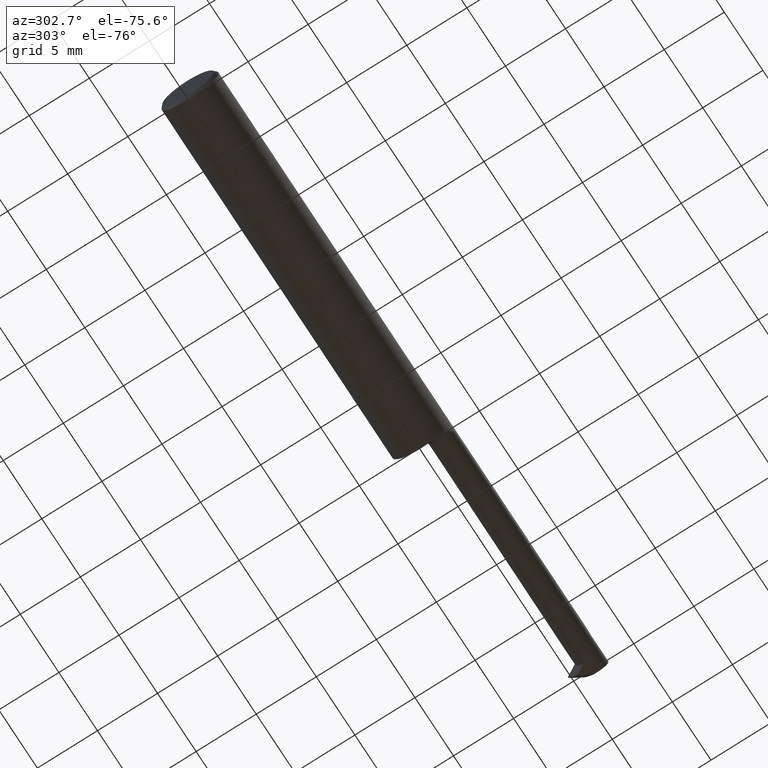
[diagram: clean part render]
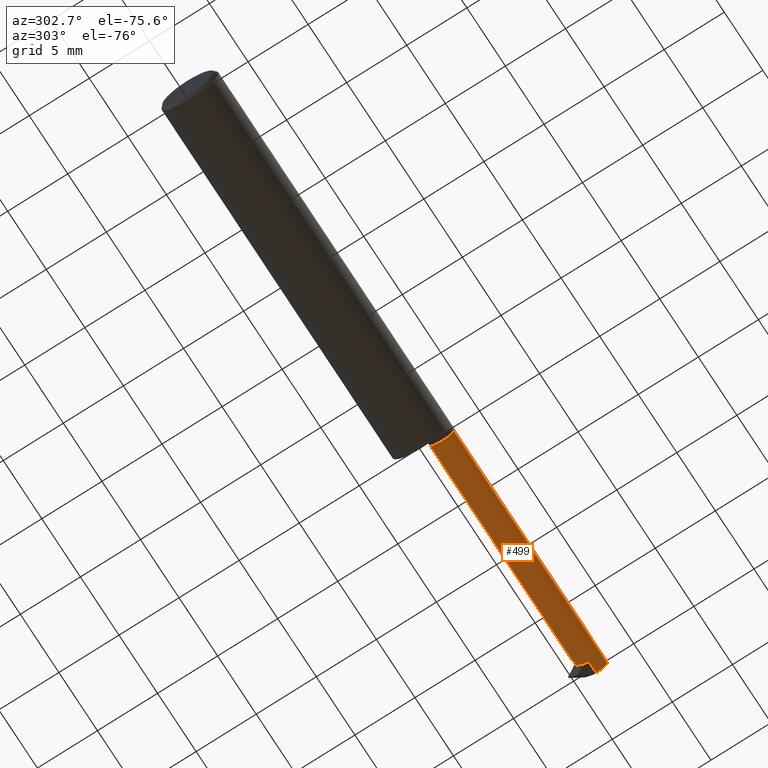
[diagram: same view with one face highlighted and labeled with its STEP entity id]
A machine part, auxiliary view. The second image highlights one B-rep face of the part: STEP entity #499.
In plain terms, the highlighted cylindrical surface (edge-blend (fillet) strip) has radius 1.0668 mm, axis along (-1, -0, -0).
Its self-contained STEP definition (entity closure, byte-faithful):
#3 =( BOUNDED_CURVE ( )  B_SPLINE_CURVE ( 3, ( #574, #258, #501, #392 ),
 .UNSPECIFIED., .F., .T. ) 
 B_SPLINE_CURVE_WITH_KNOTS ( ( 4, 4 ),
 ( 5.125301605908225255, 7.853981633974481902 ),
 .UNSPECIFIED. ) 
 CURVE ( )  GEOMETRIC_REPRESENTATION_ITEM ( )  RATIONAL_B_SPLINE_CURVE ( ( 1.000000000000000000, 0.4699951750264964589, 0.4699951750264964589, 1.000000000000000000 ) ) 
 REPRESENTATION_ITEM ( '' )  );
#9 = ORIENTED_EDGE ( 'NONE', *, *, #787, .F. ) ;
#11 = CARTESIAN_POINT ( 'NONE',  ( 1.944157112200977977, -0.01465827810819476766, -0.01573347692346793378 ) ) ;
#19 = VECTOR ( 'NONE', #249, 39.37007874015748143 ) ;
#22 = CARTESIAN_POINT ( 'NONE',  ( 1.958160445373316572, -0.01548700727932111887, -0.01764701096325277038 ) ) ;
#23 = EDGE_CURVE ( 'NONE', #543, #142, #790, .T. ) ;
#26 = VERTEX_POINT ( 'NONE', #732 ) ;
#45 = ORIENTED_EDGE ( 'NONE', *, *, #672, .F. ) ;
#46 = CYLINDRICAL_SURFACE ( 'NONE', #468, 0.04200000000000005118 ) ;
#55 = FACE_OUTER_BOUND ( 'NONE', #748, .T. ) ;
#56 = CARTESIAN_POINT ( 'NONE',  ( 1.944157112200977977, -0.01465827810819476766, -0.01573347692346793378 ) ) ;
#65 = EDGE_CURVE ( 'NONE', #632, #285, #313, .T. ) ;
#66 = DIRECTION ( 'NONE',  ( -1.000000000000000000, -5.600139467623446789E-17, -0.000000000000000000 ) ) ;
#67 = CARTESIAN_POINT ( 'NONE',  ( 1.958123224213872859, -0.01543225915984472625, -0.01752779390450338176 ) ) ;
#68 = VERTEX_POINT ( 'NONE', #67 ) ;
#88 =( BOUNDED_CURVE ( )  B_SPLINE_CURVE ( 3, ( #455, #581, #22, #270 ),
 .UNSPECIFIED., .F., .T. ) 
 B_SPLINE_CURVE_WITH_KNOTS ( ( 4, 4 ),
 ( 3.487116828093227205, 3.496487303261009316 ),
 .UNSPECIFIED. ) 
 CURVE ( )  GEOMETRIC_REPRESENTATION_ITEM ( )  RATIONAL_B_SPLINE_CURVE ( ( 1.000000000000000000, 0.9999926828629792652, 0.9999926828629792652, 1.000000000000000000 ) ) 
 REPRESENTATION_ITEM ( '' )  );
#90 = CARTESIAN_POINT ( 'NONE',  ( 1.957981087998196923, -0.01465827810818012659, -0.01573347692347086199 ) ) ;
#98 = CARTESIAN_POINT ( 'NONE',  ( 1.960892469047972320, -0.03472121277308404252, -0.03875606750253036276 ) ) ;
#106 = EDGE_CURVE ( 'NONE', #142, #285, #339, .T. ) ;
#115 = VERTEX_POINT ( 'NONE', #515 ) ;
#118 = CARTESIAN_POINT ( 'NONE',  ( 1.947215390309172900, -0.01159999999999992634, 0.000000000000000000 ) ) ;
#119 = ORIENTED_EDGE ( 'NONE', *, *, #442, .F. ) ;
#121 = CARTESIAN_POINT ( 'NONE',  ( 1.189999999999999947, -0.05360000000000008508, 0.000000000000000000 ) ) ;
#142 = VERTEX_POINT ( 'NONE', #11 ) ;
#152 = CARTESIAN_POINT ( 'NONE',  ( 1.958123224213872859, -0.05360000000000004344, 0.000000000000000000 ) ) ;
#156 = CARTESIAN_POINT ( 'NONE',  ( 1.583607695154586548, -0.09207014925373126213, 0.01685371224376544519 ) ) ;
#164 = CARTESIAN_POINT ( 'NONE',  ( 1.958233473925546475, -0.01559817617613203436, -0.01788466902292853641 ) ) ;
#168 = EDGE_CURVE ( 'NONE', #68, #26, #707, .T. ) ;
#169 = VERTEX_POINT ( 'NONE', #327 ) ;
#174 = CARTESIAN_POINT ( 'NONE',  ( 1.957981087998196923, -0.01465827810818012659, -0.01573347692347086199 ) ) ;
#183 = CARTESIAN_POINT ( 'NONE',  ( 1.960072361890374593, -0.02716878841581448281, -0.03264032864712024251 ) ) ;
#192 = ORIENTED_EDGE ( 'NONE', *, *, #65, .T. ) ;
#195 = EDGE_CURVE ( 'NONE', #474, #632, #3, .T. ) ;
#214 = ORIENTED_EDGE ( 'NONE', *, *, #23, .F. ) ;
#215 = CARTESIAN_POINT ( 'NONE',  ( 1.961435826313442821, -0.04388190474321993634, -0.04200000000000005812 ) ) ;
#216 = ORIENTED_EDGE ( 'NONE', *, *, #452, .T. ) ;
#217 = EDGE_CURVE ( 'NONE', #169, #68, #88, .T. ) ;
#239 = ORIENTED_EDGE ( 'NONE', *, *, #217, .T. ) ;
#249 = DIRECTION ( 'NONE',  ( -1.000000000000000000, -5.600139467623446789E-17, -0.000000000000000000 ) ) ;
#251 =( BOUNDED_CURVE ( )  B_SPLINE_CURVE ( 3, ( #654, #215, #98, #414 ),
 .UNSPECIFIED., .F., .T. ) 
 B_SPLINE_CURVE_WITH_KNOTS ( ( 4, 4 ),
 ( 3.333578871309169411, 4.014249778417044112 ),
 .UNSPECIFIED. ) 
 CURVE ( )  GEOMETRIC_REPRESENTATION_ITEM ( )  RATIONAL_B_SPLINE_CURVE ( ( 1.000000000000000000, 0.9617618287043554481, 0.9617618287043554481, 1.000000000000000000 ) ) 
 REPRESENTATION_ITEM ( '' )  );
#258 = CARTESIAN_POINT ( 'NONE',  ( 1.839736977044367228, -0.06867161373106636657, 0.07026302295563210953 ) ) ;
#268 = CARTESIAN_POINT ( 'NONE',  ( 1.910000000000000142, -0.01159999999999999747, 9.919639073093575991E-17 ) ) ;
#270 = CARTESIAN_POINT ( 'NONE',  ( 1.958123224213872859, -0.01543225915984472625, -0.01752779390450338176 ) ) ;
#280 = CARTESIAN_POINT ( 'NONE',  ( 1.958149881984653007, -0.01526487251527705417, -0.01717645647600237260 ) ) ;
#283 = LINE ( 'NONE', #156, #761 ) ;
#284 = EDGE_CURVE ( 'NONE', #439, #474, #283, .T. ) ;
#285 = VERTEX_POINT ( 'NONE', #338 ) ;
#295 = ORIENTED_EDGE ( 'NONE', *, *, #321, .F. ) ;
#307 = CARTESIAN_POINT ( 'NONE',  ( 1.214999999999999858, -0.09207014925373123437, 0.01685371224376555968 ) ) ;
#313 = LINE ( 'NONE', #608, #616 ) ;
#321 = EDGE_CURVE ( 'NONE', #467, #651, #251, .T. ) ;
#327 = CARTESIAN_POINT ( 'NONE',  ( 1.958233473925546475, -0.01559817617613203436, -0.01788466902292853641 ) ) ;
#332 =( BOUNDED_CURVE ( )  B_SPLINE_CURVE ( 3, ( #613, #546, #417, #183 ),
 .UNSPECIFIED., .F., .T. ) 
 B_SPLINE_CURVE_WITH_KNOTS ( ( 4, 4 ),
 ( 2.786698003918577360, 3.036865397300217317 ),
 .UNSPECIFIED. ) 
 CURVE ( )  GEOMETRIC_REPRESENTATION_ITEM ( )  RATIONAL_B_SPLINE_CURVE ( ( 1.000000000000000000, 0.9947914859276588695, 0.9947914859276588695, 1.000000000000000000 ) ) 
 REPRESENTATION_ITEM ( '' )  );
#338 = CARTESIAN_POINT ( 'NONE',  ( 1.947215390309172900, -0.01159999999999992634, 0.000000000000000000 ) ) ;
#339 =( BOUNDED_CURVE ( )  B_SPLINE_CURVE ( 3, ( #56, #548, #674, #118 ),
 .UNSPECIFIED., .F., .F. ) 
 B_SPLINE_CURVE_WITH_KNOTS ( ( 4, 4 ),
 ( 1.186823891356153737, 1.570796326794896780 ),
 .UNSPECIFIED. ) 
 CURVE ( )  GEOMETRIC_REPRESENTATION_ITEM ( )  RATIONAL_B_SPLINE_CURVE ( ( 1.000000000000000000, 0.9877514556317765759, 0.9877514556317765759, 1.000000000000000000 ) ) 
 REPRESENTATION_ITEM ( '' )  );
#344 = CARTESIAN_POINT ( 'NONE',  ( 1.583607695154586548, -0.09207014925373126213, -0.01685371224376544519 ) ) ;
#352 = CARTESIAN_POINT ( 'NONE',  ( 1.961640102722211676, -0.05360000000000004344, -0.04200000000000005118 ) ) ;
#353 = AXIS2_PLACEMENT_3D ( 'NONE', #152, #508, #451 ) ;
#359 = EDGE_CURVE ( 'NONE', #770, #698, #716, .T. ) ;
#377 = DIRECTION ( 'NONE',  ( 1.000000000000000000, 0.000000000000000000, 0.000000000000000000 ) ) ;
#392 = CARTESIAN_POINT ( 'NONE',  ( 1.910000000000000142, -0.01159999999999999747, 9.919639073093575991E-17 ) ) ;
#393 = ORIENTED_EDGE ( 'NONE', *, *, #168, .T. ) ;
#414 = CARTESIAN_POINT ( 'NONE',  ( 1.960072361890374593, -0.02716878841581448281, -0.03264032864712024251 ) ) ;
#417 = CARTESIAN_POINT ( 'NONE',  ( 1.959772643405776504, -0.02989775884994297014, -0.03485017143795873795 ) ) ;
#422 = DIRECTION ( 'NONE',  ( 1.000000000000000000, 5.600139467623446789E-17, 0.000000000000000000 ) ) ;
#439 = VERTEX_POINT ( 'NONE', #307 ) ;
#442 = EDGE_CURVE ( 'NONE', #115, #467, #477, .T. ) ;
#443 = EDGE_CURVE ( 'NONE', #439, #698, #537, .T. ) ;
#451 = DIRECTION ( 'NONE',  ( 0.000000000000000000, 3.455462491986042419E-15, -1.000000000000000000 ) ) ;
#452 = EDGE_CURVE ( 'NONE', #26, #651, #332, .T. ) ;
#455 = CARTESIAN_POINT ( 'NONE',  ( 1.958233473925546475, -0.01559817617613203436, -0.01788466902292853641 ) ) ;
#467 = VERTEX_POINT ( 'NONE', #352 ) ;
#468 = AXIS2_PLACEMENT_3D ( 'NONE', #121, #735, #667 ) ;
#474 = VERTEX_POINT ( 'NONE', #488 ) ;
#477 = LINE ( 'NONE', #480, #496 ) ;
#480 = CARTESIAN_POINT ( 'NONE',  ( 2.152215390309172971, -0.05359999999999993242, -0.04200000000000003730 ) ) ;
#488 = CARTESIAN_POINT ( 'NONE',  ( 1.893146287756234614, -0.09207014925373130376, 0.01685371224376530641 ) ) ;
#496 = VECTOR ( 'NONE', #730, 39.37007874015748143 ) ;
#499 = ADVANCED_FACE ( 'NONE', ( #55 ), #46, .T. ) ;
#501 = CARTESIAN_POINT ( 'NONE',  ( 1.851690087160739129, -0.01160000000000004951, 0.05830991283926045127 ) ) ;
#508 = DIRECTION ( 'NONE',  ( -1.000000000000000000, -0.000000000000000000, -0.000000000000000000 ) ) ;
#512 = AXIS2_PLACEMENT_3D ( 'NONE', #785, #66, #737 ) ;
#514 = DIRECTION ( 'NONE',  ( 0.000000000000000000, 8.130499981143633629E-16, 1.000000000000000000 ) ) ;
#515 = CARTESIAN_POINT ( 'NONE',  ( 2.000000000000000000, -0.05359999999999993242, -0.04200000000000003730 ) ) ;
#526 = CARTESIAN_POINT ( 'NONE',  ( 1.214999999999999858, -0.09207014925373122050, -0.01685371224376561866 ) ) ;
#527 = DIRECTION ( 'NONE',  ( -1.000000000000000000, -5.600139467623446789E-17, -0.000000000000000000 ) ) ;
#535 = AXIS2_PLACEMENT_3D ( 'NONE', #640, #377, #514 ) ;
#537 = CIRCLE ( 'NONE', #512, 0.04200000000000006506 ) ;
#543 = VERTEX_POINT ( 'NONE', #174 ) ;
#546 = CARTESIAN_POINT ( 'NONE',  ( 1.959119529091848388, -0.03288110353595002922, -0.03670228894909075695 ) ) ;
#548 = CARTESIAN_POINT ( 'NONE',  ( 1.945131938701439855, -0.01263206735890142103, -0.01071842933564105642 ) ) ;
#574 = CARTESIAN_POINT ( 'NONE',  ( 1.893146287756234614, -0.09207014925373130376, 0.01685371224376530641 ) ) ;
#581 = CARTESIAN_POINT ( 'NONE',  ( 1.958197195546113933, -0.01554231335609902558, -0.01776597020650226219 ) ) ;
#585 =( BOUNDED_CURVE ( )  B_SPLINE_CURVE ( 3, ( #164, #280, #774, #90 ),
 .UNSPECIFIED., .F., .F. ) 
 B_SPLINE_CURVE_WITH_KNOTS ( ( 4, 4 ),
 ( 4.464501209210055777, 4.520402762665389318 ),
 .UNSPECIFIED. ) 
 CURVE ( )  GEOMETRIC_REPRESENTATION_ITEM ( )  RATIONAL_B_SPLINE_CURVE ( ( 1.000000000000000000, 0.9997396016470314617, 0.9997396016470314617, 1.000000000000000000 ) ) 
 REPRESENTATION_ITEM ( '' )  );
#600 = ORIENTED_EDGE ( 'NONE', *, *, #359, .T. ) ;
#608 = CARTESIAN_POINT ( 'NONE',  ( 1.189999999999999947, -0.01160000000000003736, 9.919639073093575991E-17 ) ) ;
#613 = CARTESIAN_POINT ( 'NONE',  ( 1.958123224213872859, -0.03607220609549650209, -0.03816774084015524260 ) ) ;
#616 = VECTOR ( 'NONE', #422, 39.37007874015748143 ) ;
#632 = VERTEX_POINT ( 'NONE', #268 ) ;
#640 = CARTESIAN_POINT ( 'NONE',  ( 2.000000000000000000, -0.05360000000000004344, 0.000000000000000000 ) ) ;
#651 = VERTEX_POINT ( 'NONE', #696 ) ;
#652 = CARTESIAN_POINT ( 'NONE',  ( 2.000000000000000000, -0.09207014925373108172, -0.01685371224376540009 ) ) ;
#654 = CARTESIAN_POINT ( 'NONE',  ( 1.961640102722211676, -0.05360000000000004344, -0.04200000000000005118 ) ) ;
#667 = DIRECTION ( 'NONE',  ( 0.000000000000000000, -1.000000000000000000, 0.000000000000000000 ) ) ;
#669 = ORIENTED_EDGE ( 'NONE', *, *, #443, .F. ) ;
#672 = EDGE_CURVE ( 'NONE', #770, #115, #682, .T. ) ;
#674 = CARTESIAN_POINT ( 'NONE',  ( 1.946164006060341789, -0.01159999999999998532, -0.005408903059652712085 ) ) ;
#679 = ORIENTED_EDGE ( 'NONE', *, *, #284, .T. ) ;
#682 = CIRCLE ( 'NONE', #535, 0.04200000000000003730 ) ;
#683 = ORIENTED_EDGE ( 'NONE', *, *, #106, .F. ) ;
#696 = CARTESIAN_POINT ( 'NONE',  ( 1.960072361890374593, -0.02716878841581448281, -0.03264032864712024251 ) ) ;
#698 = VERTEX_POINT ( 'NONE', #526 ) ;
#704 = ORIENTED_EDGE ( 'NONE', *, *, #195, .T. ) ;
#707 = CIRCLE ( 'NONE', #353, 0.04200000000000005812 ) ;
#716 = LINE ( 'NONE', #344, #745 ) ;
#730 = DIRECTION ( 'NONE',  ( -1.000000000000000000, -0.000000000000000000, -0.000000000000000000 ) ) ;
#732 = CARTESIAN_POINT ( 'NONE',  ( 1.958123224213872859, -0.03607220609549650209, -0.03816774084015524260 ) ) ;
#735 = DIRECTION ( 'NONE',  ( -1.000000000000000000, -5.600139467623446789E-17, -0.000000000000000000 ) ) ;
#737 = DIRECTION ( 'NONE',  ( 0.000000000000000000, -1.000000000000000000, 0.000000000000000000 ) ) ;
#745 = VECTOR ( 'NONE', #527, 39.37007874015748143 ) ;
#748 = EDGE_LOOP ( 'NONE', ( #393, #216, #295, #119, #45, #600, #669, #679, #704, #192, #683, #214, #9, #239 ) ) ;
#761 = VECTOR ( 'NONE', #773, 39.37007874015748143 ) ;
#770 = VERTEX_POINT ( 'NONE', #652 ) ;
#773 = DIRECTION ( 'NONE',  ( 1.000000000000000000, 5.600139467623446789E-17, 0.000000000000000000 ) ) ;
#774 = CARTESIAN_POINT ( 'NONE',  ( 1.958065731429537326, -0.01495149155541182322, -0.01645920567191993741 ) ) ;
#785 = CARTESIAN_POINT ( 'NONE',  ( 1.214999999999999858, -0.05360000000000008508, 0.000000000000000000 ) ) ;
#786 = CARTESIAN_POINT ( 'NONE',  ( 1.190000000000000169, -0.01465827810818335145, -0.01573347692343958840 ) ) ;
#787 = EDGE_CURVE ( 'NONE', #169, #543, #585, .T. ) ;
#790 = LINE ( 'NONE', #786, #19 ) ;